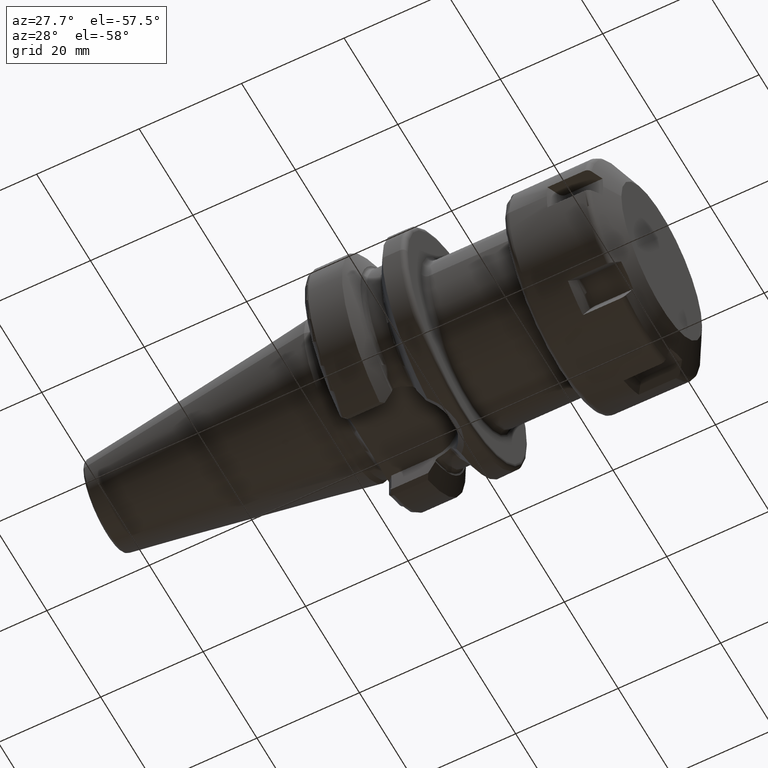
[diagram: clean part render]
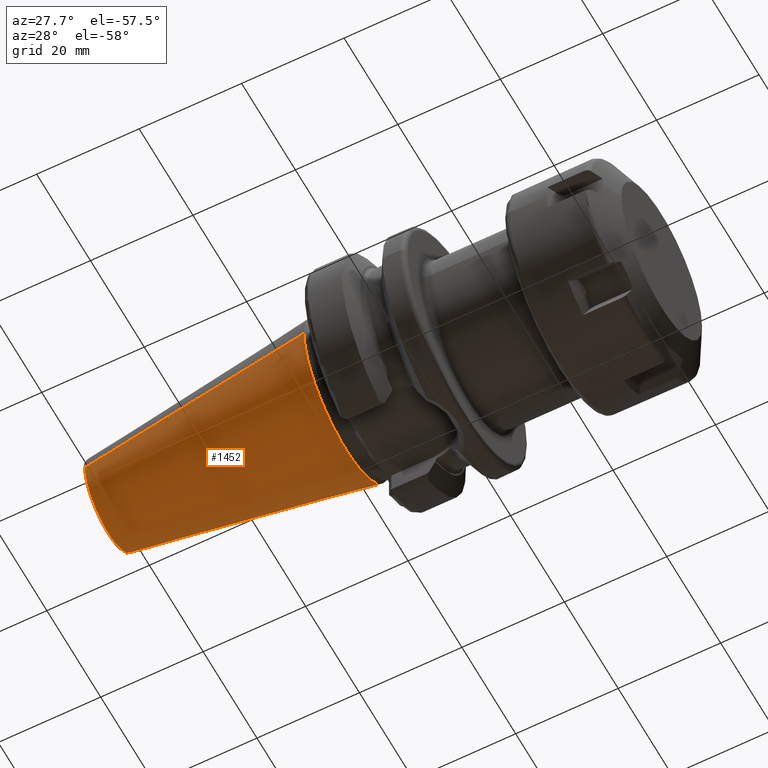
[diagram: same view with one face highlighted and labeled with its STEP entity id]
A machine part, auxiliary view. The second image highlights one B-rep face of the part: STEP entity #1452.
In plain terms, the highlighted conical surface has half-angle 8.298 deg.
Its self-contained STEP definition (entity closure, byte-faithful):
#32=CARTESIAN_POINT('',(-4.797215933459E1,0.E0,0.E0));
#33=DIRECTION('',(-1.E0,0.E0,0.E0));
#34=DIRECTION('',(0.E0,1.E0,0.E0));
#35=AXIS2_PLACEMENT_3D('',#32,#33,#34);
#47=DIRECTION('',(-9.895312636440E-1,-1.443186691705E-1,0.E0));
#48=VECTOR('',#47,4.683321324594E1);
#49=CARTESIAN_POINT('',(-1.629230650827E0,1.563738406209E1,0.E0));
#50=LINE('',#49,#48);
#51=DIRECTION('',(-9.895312636440E-1,1.443186691705E-1,0.E0));
#52=VECTOR('',#51,4.683321324594E1);
#53=CARTESIAN_POINT('',(-1.629230650827E0,-1.563738406209E1,0.E0));
#54=LINE('',#53,#52);
#55=CARTESIAN_POINT('',(-1.629230650827E0,0.E0,0.E0));
#56=DIRECTION('',(-1.E0,0.E0,0.E0));
#57=DIRECTION('',(0.E0,1.E0,0.E0));
#58=AXIS2_PLACEMENT_3D('',#55,#56,#57);
#1136=CARTESIAN_POINT('',(-4.797215933459E1,8.878477053461E0,0.E0));
#1138=VERTEX_POINT('',#1136);
#1140=CARTESIAN_POINT('',(-4.797215933459E1,-8.878477053461E0,0.E0));
#1142=VERTEX_POINT('',#1140);
#1351=CARTESIAN_POINT('',(-1.629230650827E0,1.563738406209E1,0.E0));
#1352=VERTEX_POINT('',#1351);
#1353=CARTESIAN_POINT('',(-1.629230650827E0,-1.563738406209E1,0.E0));
#1354=VERTEX_POINT('',#1353);
#1440=CARTESIAN_POINT('',(-2.480069499271E1,0.E0,0.E0));
#1441=DIRECTION('',(1.E0,0.E0,0.E0));
#1442=DIRECTION('',(0.E0,-1.E0,0.E0));
#1443=AXIS2_PLACEMENT_3D('',#1440,#1441,#1442);
#1444=CONICAL_SURFACE('',#1443,1.225793055778E1,8.297826828206E0);
#1445=ORIENTED_EDGE('',*,*,#1430,.T.);
#1446=ORIENTED_EDGE('',*,*,#1407,.T.);
#1447=ORIENTED_EDGE('',*,*,#1434,.F.);
#1449=ORIENTED_EDGE('',*,*,#1448,.F.);
#1450=EDGE_LOOP('',(#1445,#1446,#1447,#1449));
#1451=FACE_OUTER_BOUND('',#1450,.F.);
#1452=ADVANCED_FACE('',(#1451),#1444,.T.);
#36=CIRCLE('',#35,8.878477053461E0);
#59=CIRCLE('',#58,1.563738406209E1);
#1407=EDGE_CURVE('',#1138,#1142,#36,.T.);
#1430=EDGE_CURVE('',#1352,#1138,#50,.T.);
#1434=EDGE_CURVE('',#1354,#1142,#54,.T.);
#1448=EDGE_CURVE('',#1352,#1354,#59,.T.);